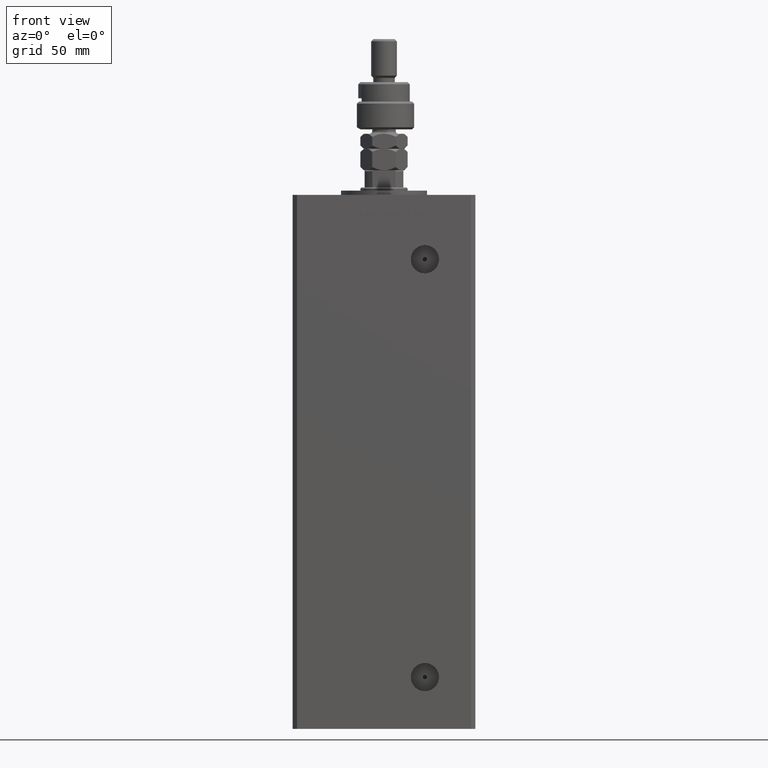
[diagram: clean part render]
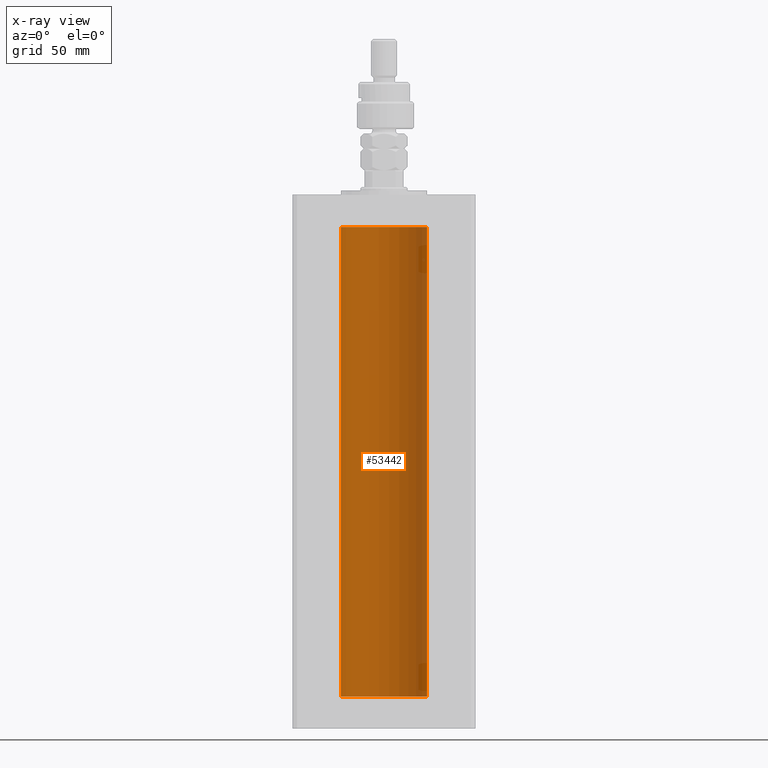
[diagram: x-ray — body ghosted, one internal face saturated and labeled with its STEP entity id]
A machine part, front view, then the same camera in x-ray: the body is ghosted and one INTERNAL B-rep face — a face not visible from any outside direction — is saturated and labeled: STEP entity #53442.
In plain terms, the highlighted cylindrical surface (partial cylindrical patch) has radius 20 mm, axis along (-0, -0, -1).
Its self-contained STEP definition (entity closure, byte-faithful):
#47 = VERTEX_POINT ( 'NONE', #2111 ) ;
#130 = CARTESIAN_POINT ( 'NONE',  ( 20.00000000000000000, 2.449293598294706513E-15, 218.5000000000000000 ) ) ;
#1348 = CARTESIAN_POINT ( 'NONE',  ( 0.000000000000000000, 0.000000000000000000, 218.5000000000000000 ) ) ;
#2111 = CARTESIAN_POINT ( 'NONE',  ( -20.00000000000000000, 0.000000000000000000, 0.000000000000000000 ) ) ;
#3528 = DIRECTION ( 'NONE',  ( -0.000000000000000000, 0.000000000000000000, 1.000000000000000000 ) ) ;
#7257 = CARTESIAN_POINT ( 'NONE',  ( 20.00000000000000000, 2.449293598294706513E-15, 0.000000000000000000 ) ) ;
#11617 = CARTESIAN_POINT ( 'NONE',  ( 0.000000000000000000, 0.000000000000000000, 0.000000000000000000 ) ) ;
#11763 = CIRCLE ( 'NONE', #14437, 20.00000000000000000 ) ;
#12194 = EDGE_CURVE ( 'NONE', #42396, #23812, #12339, .T. ) ;
#12339 = CIRCLE ( 'NONE', #20360, 20.00000000000000000 ) ;
#13596 = ORIENTED_EDGE ( 'NONE', *, *, #12194, .T. ) ;
#14437 = AXIS2_PLACEMENT_3D ( 'NONE', #11617, #3528, #28593 ) ;
#15218 = VECTOR ( 'NONE', #42976, 1000.000000000000000 ) ;
#15834 = AXIS2_PLACEMENT_3D ( 'NONE', #1348, #18324, #35305 ) ;
#18284 = EDGE_CURVE ( 'NONE', #42396, #31131, #25989, .T. ) ;
#18324 = DIRECTION ( 'NONE',  ( -0.000000000000000000, -0.000000000000000000, -1.000000000000000000 ) ) ;
#20360 = AXIS2_PLACEMENT_3D ( 'NONE', #36331, #44959, #53578 ) ;
#22355 = DIRECTION ( 'NONE',  ( -0.000000000000000000, -0.000000000000000000, -1.000000000000000000 ) ) ;
#23654 = ORIENTED_EDGE ( 'NONE', *, *, #18284, .F. ) ;
#23812 = VERTEX_POINT ( 'NONE', #39006 ) ;
#25967 = VECTOR ( 'NONE', #22355, 1000.000000000000000 ) ;
#25989 = LINE ( 'NONE', #130, #15218 ) ;
#26510 = CARTESIAN_POINT ( 'NONE',  ( -20.00000000000000000, 0.000000000000000000, 218.5000000000000000 ) ) ;
#28593 = DIRECTION ( 'NONE',  ( 1.000000000000000000, 0.000000000000000000, 0.000000000000000000 ) ) ;
#31131 = VERTEX_POINT ( 'NONE', #7257 ) ;
#31711 = EDGE_CURVE ( 'NONE', #31131, #47, #11763, .T. ) ;
#34857 = ORIENTED_EDGE ( 'NONE', *, *, #31711, .F. ) ;
#35150 = EDGE_CURVE ( 'NONE', #23812, #47, #51026, .T. ) ;
#35305 = DIRECTION ( 'NONE',  ( -1.000000000000000000, 0.000000000000000000, 0.000000000000000000 ) ) ;
#36331 = CARTESIAN_POINT ( 'NONE',  ( 0.000000000000000000, 0.000000000000000000, 218.5000000000000000 ) ) ;
#39006 = CARTESIAN_POINT ( 'NONE',  ( -20.00000000000000000, 0.000000000000000000, 218.5000000000000000 ) ) ;
#39490 = FACE_OUTER_BOUND ( 'NONE', #54388, .T. ) ;
#42396 = VERTEX_POINT ( 'NONE', #42786 ) ;
#42786 = CARTESIAN_POINT ( 'NONE',  ( 20.00000000000000000, 2.449293598294706513E-15, 218.5000000000000000 ) ) ;
#42976 = DIRECTION ( 'NONE',  ( -0.000000000000000000, -0.000000000000000000, -1.000000000000000000 ) ) ;
#44959 = DIRECTION ( 'NONE',  ( -0.000000000000000000, 0.000000000000000000, 1.000000000000000000 ) ) ;
#46109 = ORIENTED_EDGE ( 'NONE', *, *, #35150, .T. ) ;
#47000 = CYLINDRICAL_SURFACE ( 'NONE', #15834, 20.00000000000000000 ) ;
#51026 = LINE ( 'NONE', #26510, #25967 ) ;
#53442 = ADVANCED_FACE ( 'NONE', ( #39490 ), #47000, .F. ) ;
#53578 = DIRECTION ( 'NONE',  ( 1.000000000000000000, 0.000000000000000000, 0.000000000000000000 ) ) ;
#54388 = EDGE_LOOP ( 'NONE', ( #23654, #13596, #46109, #34857 ) ) ;